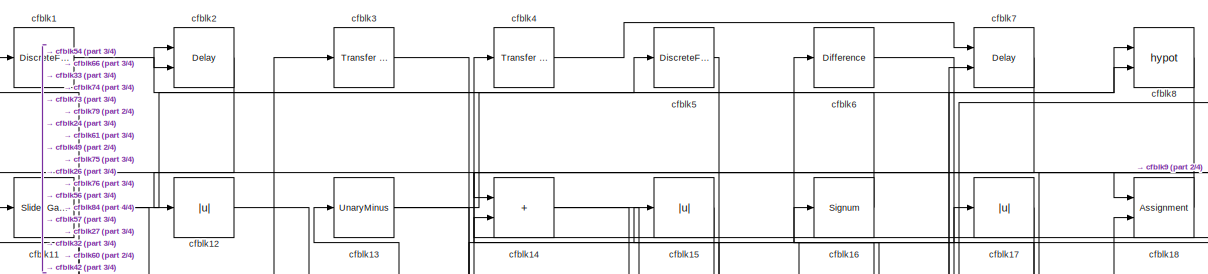
[diagram: root canvas - part 1/4, full width, top band]
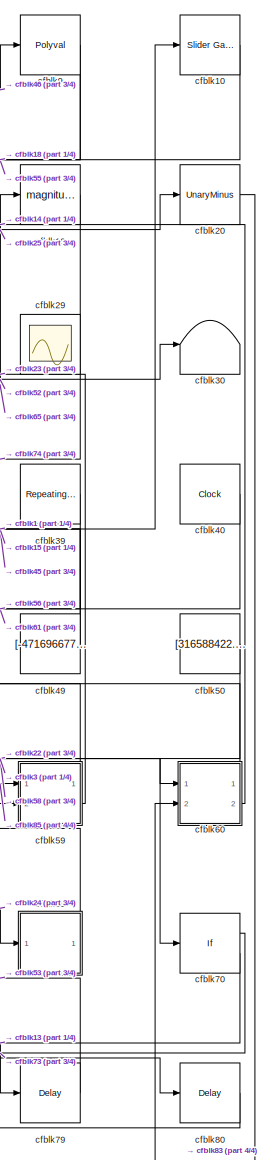
[diagram: root canvas - part 2/4, right side, full height]
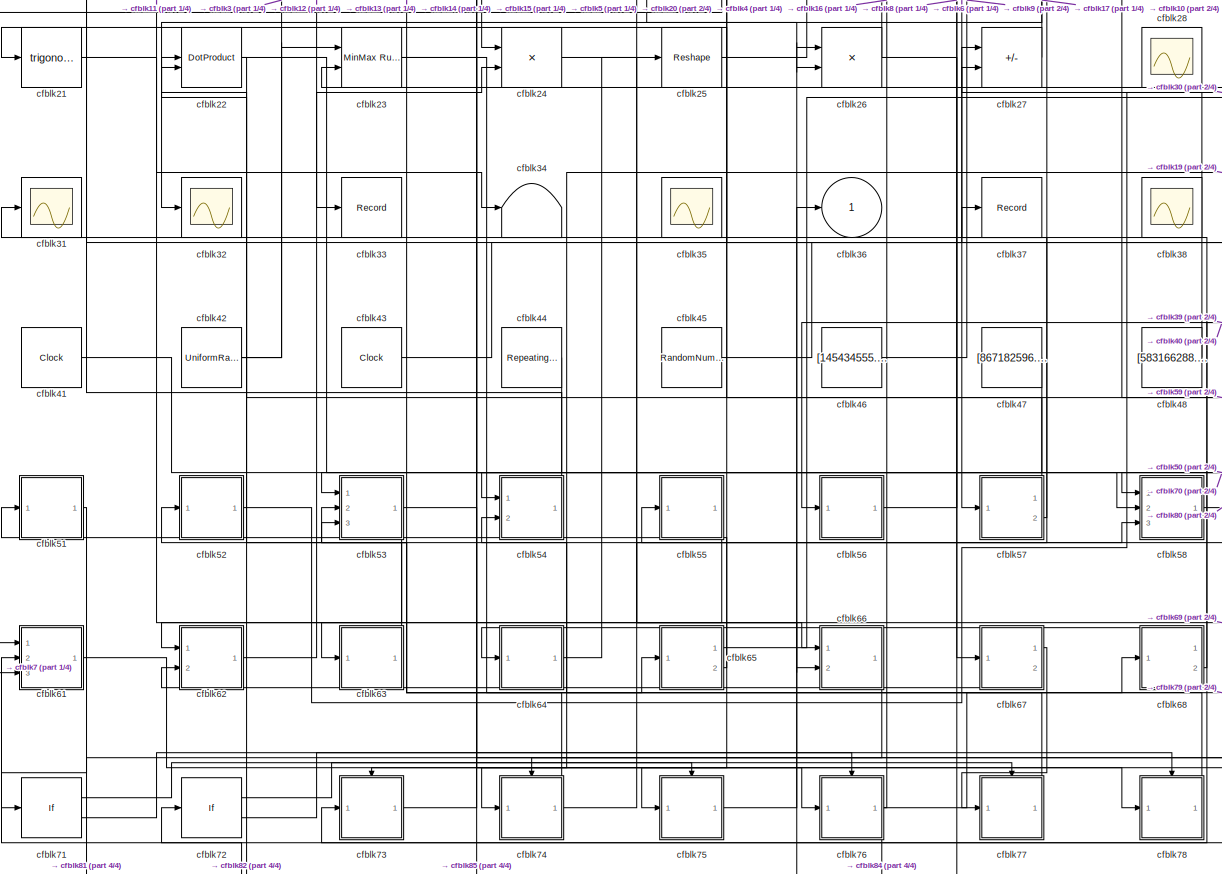
[diagram: root canvas - part 3/4, full width, middle band]
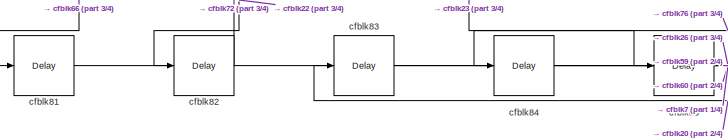
[diagram: root canvas - part 4/4, bottom left region]
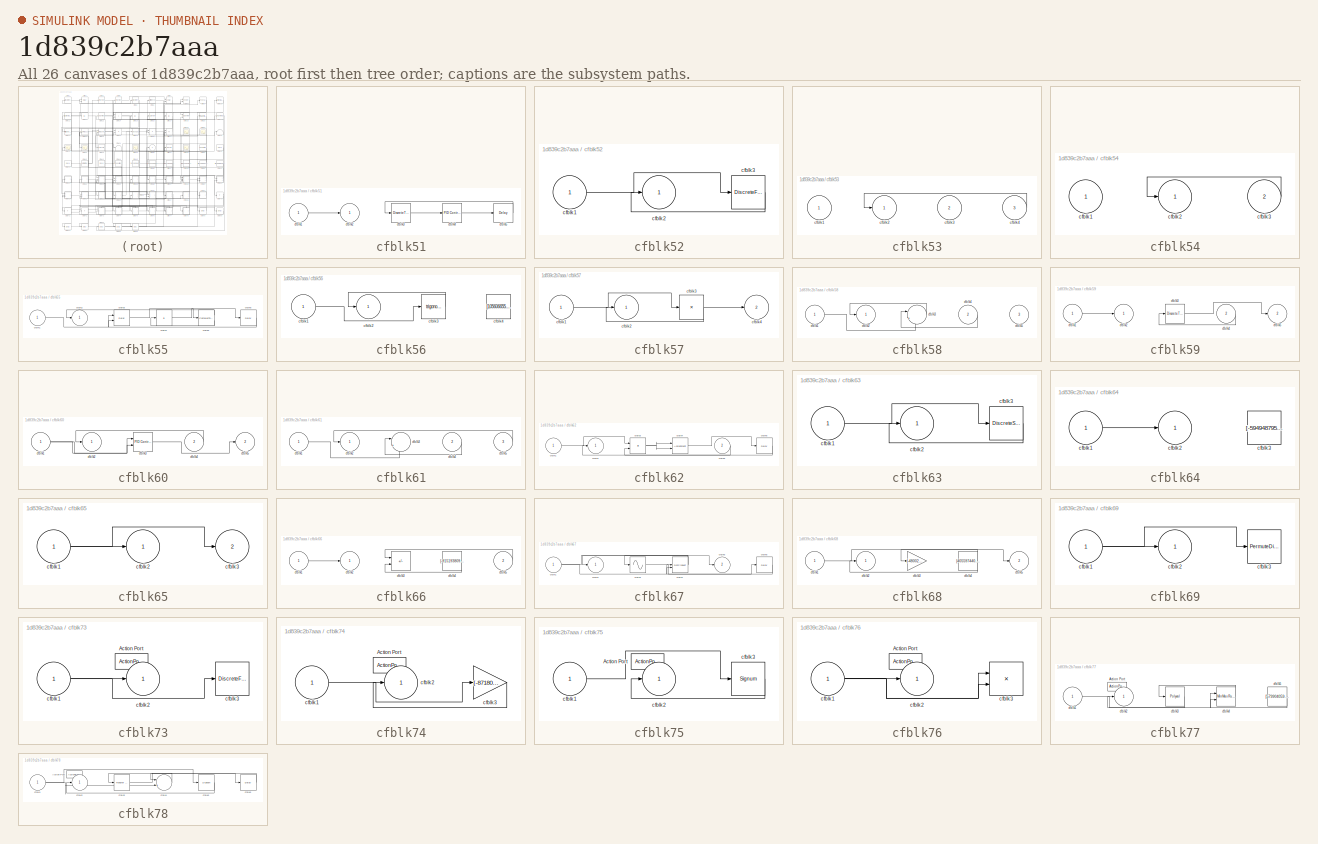
[diagram: thumbnail index - all 26 canvases of the model, root first then tree order]
MODEL slx_1d839c2b7aaa
KIND model
CONFIG AbsTol = auto
CONFIG EnableMultiTasking = off
CONFIG FixedStep = auto
CONFIG MaxStep = auto
CONFIG MinStep = auto
CONFIG RelTol = 1e-3
CONFIG SampleTimeConstraint = Unconstrained
CONFIG SolverName = VariableStepAuto
CONFIG StartTime = 0.0
CONFIG StopTime = 10.0
BLOCK [DiscreteFilter] cfblk1
  InputPortMap = u0
  Ports = [1, 1]
  SampleTime = 1
BLOCK [Reference] cfblk10  REF=simulink/Math
Operations/Slider
Gain
  Ports = [1, 1]
  SourceBlock = simulink/Math\nOperations/Slider\nGain
  SourceProductBaseCode = SL
  SourceType = Slider Gain
BLOCK [Reference] cfblk11  REF=simulink/Math
Operations/Slider
Gain
  Ports = [1, 1]
  SourceBlock = simulink/Math\nOperations/Slider\nGain
  SourceProductBaseCode = SL
  SourceType = Slider Gain
BLOCK [Abs] cfblk12
  SaturateOnIntegerOverflow = off
BLOCK [UnaryMinus] cfblk13
BLOCK [Sum] cfblk14
  IconShape = rectangular
  Ports = [2, 1]
BLOCK [Abs] cfblk15
  SaturateOnIntegerOverflow = off
BLOCK [Signum] cfblk16
BLOCK [Abs] cfblk17
  SaturateOnIntegerOverflow = off
BLOCK [Assignment] cfblk18
  DiagnosticForDimensions = Warning
  IndexOptions = Index vector (dialog)
  Indices = 1
  OutputSizes = 1
  Ports = [2, 1]
BLOCK [Math] cfblk19
  Operator = magnitude^2
  Ports = [1, 1]
BLOCK [Delay] cfblk2
  DelayLengthSource = Input port
  InputPortMap = u0,p1
  Ports = [2, 1]
  SampleTime = 1
BLOCK [UnaryMinus] cfblk20
BLOCK [Trigonometry] cfblk21
  Ports = [1, 1]
BLOCK [DotProduct] cfblk22
  OutDataTypeStr = Inherit: Inherit via internal rule
BLOCK [Reference] cfblk23  REF=simulink/Math
Operations/MinMax
Running
Resettable
  Ports = [2, 1]
  SourceBlock = simulink/Math\nOperations/MinMax\nRunning\nResettable
  SourceProductBaseCode = SL
  SourceType = MinMax Running Resettable
BLOCK [Product] cfblk24
  Inputs = **
  Ports = [2, 1]
BLOCK [Reshape] cfblk25
  Ports = [1, 1]
BLOCK [Product] cfblk26
  Ports = [2, 1]
BLOCK [Sum] cfblk27
  IconShape = rectangular
  Inputs = +-
  Ports = [2, 1]
BLOCK [Scope] cfblk28
  Floating = on
  NumInputPorts = 1
  Ports = []
BLOCK [Scope] cfblk29
  Floating = on
  NumInputPorts = 1
  Ports = []
BLOCK [Reference] cfblk3  REF=simulink/Discrete/Transfer Fcn
First Order
  Ports = [1, 1]
  SourceBlock = simulink/Discrete/Transfer Fcn\nFirst Order
  SourceProductBaseCode = SL
  SourceType = First Order Transfer Fcn
BLOCK [Terminator] cfblk30
BLOCK [Scope] cfblk31
  Floating = off
  NumInputPorts = 1
  Ports = [1]
BLOCK [Scope] cfblk32
  Floating = off
  NumInputPorts = 1
  Ports = [1]
BLOCK [Record] cfblk33
  FileSettingsInternal = {"entries":[{"content":{"excelSettings":{"content":{},"type":"Streamout.ExcelSettings"}},"type":"Streamout.FileSettingStorage","uuid":"975966c2-4cda-4386-ad9c-cd4fc01fc40b"}],"packageUris":["http://schema.mathworks.com/mf0/streamout_blocks/R2020a"],"version":"1.0"}
  Ports = [1]
  SignalsInternal = {"entries":[{"content":{"signals":[{"content":{"blockPath":["sampleModel198/cfblk33"],"channel":[],"dimensions":[1],"domain":"sampleModel198/cfblk33","lineColor":"#4dbeee","plots":[1],"port":1,"sid":[""],"signalID":7610,"signalName":"cfblk12"},"type":"RecordBlkView.Signal","uuid":"3859e22a-253c-4707-ae62-4cf8810e8843"}]},"type":"RecordBlkView.InputSignals","uuid":"5a32dd6c-d0b2-4da2-9e0c-b9f135f22...<+97ch>
  VisualizationBindings = {"sparklinesplugin":{"info":[{"bindingParametersList":[],"subplotID":1}]}}
BLOCK [Terminator] cfblk34
BLOCK [Scope] cfblk35
  Floating = on
  NumInputPorts = 1
  Ports = []
BLOCK [Outport] cfblk36
BLOCK [Record] cfblk37
  FileSettingsInternal = {"entries":[{"content":{"excelSettings":{"content":{},"type":"Streamout.ExcelSettings"}},"type":"Streamout.FileSettingStorage","uuid":"afa21ecd-6699-4298-ac8a-1c9c32750c71"}],"packageUris":["http://schema.mathworks.com/mf0/streamout_blocks/R2020a"],"version":"1.0"}
  Ports = [1]
  SignalsInternal = {"entries":[{"content":{"signals":[{"content":{"blockPath":["sampleModel198/cfblk37"],"channel":[],"dimensions":[1],"domain":"sampleModel198/cfblk37","lineColor":"#a2142f","plots":[1],"port":1,"sid":[""],"signalID":7614,"signalName":"cfblk68:2"},"type":"RecordBlkView.Signal","uuid":"5cf420d3-3cc3-4fc9-a74c-599438989c23"}]},"type":"RecordBlkView.InputSignals","uuid":"7c9f76b5-0723-413a-a1a3-f1f7361...<+99ch>
  VisualizationBindings = {"sparklinesplugin":{"info":[{"bindingParametersList":[],"subplotID":1}]}}
BLOCK [Scope] cfblk38
  Floating = on
  NumInputPorts = 1
  Ports = []
BLOCK [Reference] cfblk39  REF=simulink/Sources/Repeating
Sequence
Interpolated
  Ports = [0, 1]
  SourceBlock = simulink/Sources/Repeating\nSequence\nInterpolated
  SourceProductBaseCode = SL
  SourceType = Repeating Sequence Interpolated
BLOCK [Reference] cfblk4  REF=simulink/Discrete/Transfer Fcn
Lead or Lag
  Ports = [1, 1]
  SourceBlock = simulink/Discrete/Transfer Fcn\nLead or Lag
  SourceProductBaseCode = SL
  SourceType = Lead or Lag Compensator
BLOCK [Clock] cfblk40
BLOCK [Clock] cfblk41
BLOCK [UniformRandomNumber] cfblk42
  Maximum = [9464081794.756077]
  Minimum = [-4764833722.470846]
  SampleTime = 0.1
  Seed = [23676897.000000]
BLOCK [Clock] cfblk43
BLOCK [Reference] cfblk44  REF=simulink/Sources/Repeating
Sequence
Interpolated
  Ports = [0, 1]
  SourceBlock = simulink/Sources/Repeating\nSequence\nInterpolated
  SourceProductBaseCode = SL
  SourceType = Repeating Sequence Interpolated
BLOCK [RandomNumber] cfblk45
  Mean = [-4045.318377]
  SampleTime = 0.1
  Seed = [282551397.000000]
  Variance = [3174.779034]
BLOCK [Constant] cfblk46
  SampleTime = 1
  Value = [145434555.121113]
BLOCK [Constant] cfblk47
  SampleTime = 1
  Value = [867182596.567799]
BLOCK [Constant] cfblk48
  SampleTime = 1
  Value = [583166288.141999]
BLOCK [Constant] cfblk49
  SampleTime = 1
  Value = [-471696677.962884]
BLOCK [DiscreteFir] cfblk5
  InputPortMap = u0
  OutputPortMap = o0
  Ports = [1, 1]
  SampleTime = 1
BLOCK [Constant] cfblk50
  SampleTime = 1
  Value = [316588422.628850]
BLOCK [SubSystem] cfblk51
  Ports = [1, 1]
  RequestExecContextInheritance = off
BLOCK [Inport] cfblk51/cfblk1
BLOCK [Outport] cfblk51/cfblk2
BLOCK [DiscreteTransferFcn] cfblk51/cfblk3
  InputPortMap = u0
  Ports = [1, 1]
  SampleTime = 1
BLOCK [Reference] cfblk51/cfblk4  REF=slpidlib/PID Controller
  Ports = [1, 1]
  SourceBlock = slpidlib/PID Controller
  SourceProductBaseCode = SL
  SourceType = PID 1dof
BLOCK [Delay] cfblk51/cfblk5
  InputPortMap = u0
  Ports = [1, 1]
  SampleTime = 1
BLOCK [SubSystem] cfblk52
  Ports = [1, 1]
  RequestExecContextInheritance = off
BLOCK [Inport] cfblk52/cfblk1
BLOCK [Outport] cfblk52/cfblk2
BLOCK [DiscreteFir] cfblk52/cfblk3
  InputPortMap = u0
  OutputPortMap = o0
  Ports = [1, 1]
  SampleTime = 1
BLOCK [SubSystem] cfblk53
  Ports = [3, 1]
  RequestExecContextInheritance = off
BLOCK [Inport] cfblk53/cfblk1
BLOCK [Outport] cfblk53/cfblk2
BLOCK [Inport] cfblk53/cfblk3
  Port = 2
BLOCK [Inport] cfblk53/cfblk4
  Port = 3
BLOCK [SubSystem] cfblk54
  Ports = [2, 1]
  RequestExecContextInheritance = off
BLOCK [Inport] cfblk54/cfblk1
BLOCK [Outport] cfblk54/cfblk2
BLOCK [Inport] cfblk54/cfblk3
  Port = 2
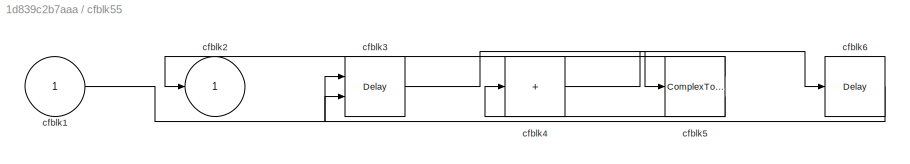
BLOCK [SubSystem] cfblk55
  Ports = [1, 1]
  RequestExecContextInheritance = off
BLOCK [Inport] cfblk55/cfblk1
BLOCK [Outport] cfblk55/cfblk2
BLOCK [Delay] cfblk55/cfblk3
  DelayLengthSource = Input port
  InputPortMap = u0,p1
  Ports = [2, 1]
  SampleTime = 1
BLOCK [Sum] cfblk55/cfblk4
  IconShape = rectangular
  Inputs = +
  Ports = [1, 1]
BLOCK [ComplexToRealImag] cfblk55/cfblk5
  Ports = [1, 2]
BLOCK [Delay] cfblk55/cfblk6
  InputPortMap = u0
  Ports = [1, 1]
  SampleTime = 1
BLOCK [SubSystem] cfblk56
  Ports = [1, 1]
  RequestExecContextInheritance = off
BLOCK [Inport] cfblk56/cfblk1
BLOCK [Outport] cfblk56/cfblk2
BLOCK [Trigonometry] cfblk56/cfblk3
  Ports = [1, 1]
BLOCK [Constant] cfblk56/cfblk4
  SampleTime = 1
  Value = [105606655.461587]
BLOCK [SubSystem] cfblk57
  Ports = [1, 2]
  RequestExecContextInheritance = off
BLOCK [Inport] cfblk57/cfblk1
BLOCK [Outport] cfblk57/cfblk2
BLOCK [Product] cfblk57/cfblk3
  Inputs = *
  Ports = [1, 1]
BLOCK [Outport] cfblk57/cfblk4
  Port = 2
BLOCK [SubSystem] cfblk58
  Ports = [3, 1]
  RequestExecContextInheritance = off
BLOCK [Inport] cfblk58/cfblk1
BLOCK [Outport] cfblk58/cfblk2
BLOCK [Sum] cfblk58/cfblk3
  Inputs = |++
  Ports = [2, 1]
BLOCK [Inport] cfblk58/cfblk4
  Port = 2
BLOCK [Inport] cfblk58/cfblk5
  Port = 3
BLOCK [SubSystem] cfblk59
  Ports = [2, 2]
  RequestExecContextInheritance = off
BLOCK [Inport] cfblk59/cfblk1
BLOCK [Outport] cfblk59/cfblk2
BLOCK [DiscreteTransferFcn] cfblk59/cfblk3
  InputPortMap = u0
  Ports = [1, 1]
  SampleTime = 1
BLOCK [Inport] cfblk59/cfblk4
  Port = 2
BLOCK [Outport] cfblk59/cfblk5
  Port = 2
BLOCK [Reference] cfblk6  REF=simulink/Discrete/Difference
  Ports = [1, 1]
  SourceBlock = simulink/Discrete/Difference
  SourceProductBaseCode = SL
  SourceType = Difference
BLOCK [SubSystem] cfblk60
  Ports = [2, 2]
  RequestExecContextInheritance = off
BLOCK [Inport] cfblk60/cfblk1
BLOCK [Outport] cfblk60/cfblk2
BLOCK [Reference] cfblk60/cfblk3  REF=slpidlib/PID Controller (2DOF)
  Ports = [2, 1]
  SourceBlock = slpidlib/PID Controller (2DOF)
  SourceProductBaseCode = SL
  SourceType = PID 2dof
BLOCK [Inport] cfblk60/cfblk4
  Port = 2
BLOCK [Outport] cfblk60/cfblk5
  Port = 2
BLOCK [SubSystem] cfblk61
  Ports = [3, 1]
  RequestExecContextInheritance = off
BLOCK [Inport] cfblk61/cfblk1
BLOCK [Outport] cfblk61/cfblk2
BLOCK [Sum] cfblk61/cfblk3
  Inputs = |++
  Ports = [2, 1]
BLOCK [Inport] cfblk61/cfblk4
  Port = 2
BLOCK [Inport] cfblk61/cfblk5
  Port = 3
BLOCK [SubSystem] cfblk62
  Ports = [2, 1]
  RequestExecContextInheritance = off
BLOCK [Inport] cfblk62/cfblk1
BLOCK [Outport] cfblk62/cfblk2
BLOCK [Product] cfblk62/cfblk3
  Ports = [2, 1]
BLOCK [Assignment] cfblk62/cfblk4
  DiagnosticForDimensions = Warning
  IndexOptions = Index vector (dialog)
  Indices = 1
  OutputSizes = 1
  Ports = [2, 1]
BLOCK [Inport] cfblk62/cfblk5
  Port = 2
BLOCK [Delay] cfblk62/cfblk6
  InputPortMap = u0
  Ports = [1, 1]
  SampleTime = 1
BLOCK [SubSystem] cfblk63
  Ports = [1, 1]
  RequestExecContextInheritance = off
BLOCK [Inport] cfblk63/cfblk1
BLOCK [Outport] cfblk63/cfblk2
BLOCK [DiscreteStateSpace] cfblk63/cfblk3
BLOCK [SubSystem] cfblk64
  Ports = [1, 1]
  RequestExecContextInheritance = off
BLOCK [Inport] cfblk64/cfblk1
BLOCK [Outport] cfblk64/cfblk2
BLOCK [Constant] cfblk64/cfblk3
  SampleTime = 1
  Value = [-594948795.505893]
BLOCK [SubSystem] cfblk65
  Ports = [1, 2]
  RequestExecContextInheritance = off
BLOCK [Inport] cfblk65/cfblk1
BLOCK [Outport] cfblk65/cfblk2
BLOCK [Outport] cfblk65/cfblk3
  Port = 2
BLOCK [SubSystem] cfblk66
  Ports = [2, 1]
  RequestExecContextInheritance = off
BLOCK [Inport] cfblk66/cfblk1
BLOCK [Outport] cfblk66/cfblk2
BLOCK [Sum] cfblk66/cfblk3
  IconShape = rectangular
  Inputs = +-
  Ports = [2, 1]
BLOCK [Constant] cfblk66/cfblk4
  SampleTime = 1
  Value = [-915193809.359701]
BLOCK [Inport] cfblk66/cfblk5
  Port = 2
BLOCK [SubSystem] cfblk67
  Ports = [1, 2]
  RequestExecContextInheritance = off
BLOCK [Inport] cfblk67/cfblk1
BLOCK [Outport] cfblk67/cfblk2
BLOCK [Sin] cfblk67/cfblk3
  Ports = [1, 1]
  SampleTime = 0
  TimeSource = Use external signal
BLOCK [DotProduct] cfblk67/cfblk4
  OutDataTypeStr = Inherit: Inherit via internal rule
BLOCK [Outport] cfblk67/cfblk5
  Port = 2
BLOCK [Delay] cfblk67/cfblk6
  InputPortMap = u0
  Ports = [1, 1]
  SampleTime = 1
BLOCK [SubSystem] cfblk68
  Ports = [1, 2]
  RequestExecContextInheritance = off
BLOCK [Inport] cfblk68/cfblk1
BLOCK [Outport] cfblk68/cfblk2
BLOCK [Gain] cfblk68/cfblk3
  Gain = [-480022562.919816]
BLOCK [Constant] cfblk68/cfblk4
  SampleTime = 1
  Value = [405597440.206954]
BLOCK [Outport] cfblk68/cfblk5
  Port = 2
BLOCK [SubSystem] cfblk69
  Ports = [1, 1]
  RequestExecContextInheritance = off
BLOCK [Inport] cfblk69/cfblk1
BLOCK [Outport] cfblk69/cfblk2
BLOCK [PermuteDimensions] cfblk69/cfblk3
BLOCK [Delay] cfblk7
  DelayLengthSource = Input port
  InputPortMap = u0,p1
  Ports = [2, 1]
  SampleTime = 1
BLOCK [If] cfblk70
  IfExpression = u1 >= 0
  Ports = [1, 2]
  SampleTime = 1
BLOCK [If] cfblk71
  IfExpression = u1 >= 0
  Ports = [1, 2]
  SampleTime = 1
BLOCK [If] cfblk72
  IfExpression = u1 >= 0
  Ports = [1, 2]
  SampleTime = 1
BLOCK [SubSystem] cfblk73
  Ports = [1, 1, 0, 0, 0, 0, 0, 1]
  RequestExecContextInheritance = off
  TreatAsAtomicUnit = on
BLOCK [ActionPort] cfblk73/Action Port
  ActionPortLabel = if(u1 >= 0)
BLOCK [Inport] cfblk73/cfblk1
BLOCK [Outport] cfblk73/cfblk2
BLOCK [DiscreteFir] cfblk73/cfblk3
  InputPortMap = u0
  OutputPortMap = o0
  Ports = [1, 1]
BLOCK [SubSystem] cfblk74
  Ports = [1, 1, 0, 0, 0, 0, 0, 1]
  RequestExecContextInheritance = off
  TreatAsAtomicUnit = on
BLOCK [ActionPort] cfblk74/Action Port
  ActionPortLabel = else
BLOCK [Inport] cfblk74/cfblk1
BLOCK [Outport] cfblk74/cfblk2
BLOCK [Gain] cfblk74/cfblk3
  Gain = [-87180.760682]
BLOCK [SubSystem] cfblk75
  Ports = [1, 1, 0, 0, 0, 0, 0, 1]
  RequestExecContextInheritance = off
  TreatAsAtomicUnit = on
BLOCK [ActionPort] cfblk75/Action Port
  ActionPortLabel = if(u1 >= 0)
BLOCK [Inport] cfblk75/cfblk1
BLOCK [Outport] cfblk75/cfblk2
BLOCK [Signum] cfblk75/cfblk3
BLOCK [SubSystem] cfblk76
  Ports = [1, 1, 0, 0, 0, 0, 0, 1]
  RequestExecContextInheritance = off
  TreatAsAtomicUnit = on
BLOCK [ActionPort] cfblk76/Action Port
  ActionPortLabel = else
BLOCK [Inport] cfblk76/cfblk1
BLOCK [Outport] cfblk76/cfblk2
BLOCK [Product] cfblk76/cfblk3
  Inputs = **
  Ports = [2, 1]
BLOCK [SubSystem] cfblk77
  Ports = [1, 1, 0, 0, 0, 0, 0, 1]
  RequestExecContextInheritance = off
  TreatAsAtomicUnit = on
BLOCK [ActionPort] cfblk77/Action Port
  ActionPortLabel = if(u1 >= 0)
BLOCK [Inport] cfblk77/cfblk1
BLOCK [Outport] cfblk77/cfblk2
BLOCK [Polyval] cfblk77/cfblk3
  Coefs = [ +2.081618890e-019, -1.441693666e-014, +4.719686976e-010, -8.536869453e-006, +1.621573104e-001, -8.087801117e+001 ]
BLOCK [Reference] cfblk77/cfblk4  REF=simulink/Math
Operations/MinMax
Running
Resettable
  Ports = [2, 1]
  SourceBlock = simulink/Math\nOperations/MinMax\nRunning\nResettable
  SourceProductBaseCode = SL
  SourceType = MinMax Running Resettable
BLOCK [Constant] cfblk77/cfblk5
  SampleTime = 1
  Value = [579904059.093683]
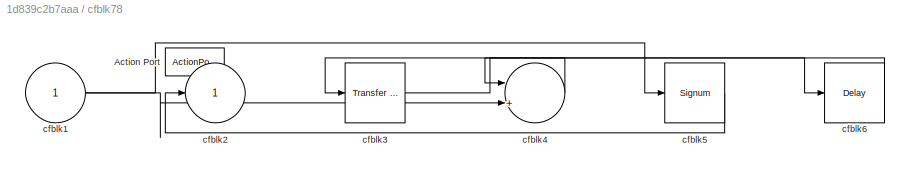
BLOCK [SubSystem] cfblk78
  Ports = [1, 1, 0, 0, 0, 0, 0, 1]
  RequestExecContextInheritance = off
  TreatAsAtomicUnit = on
BLOCK [ActionPort] cfblk78/Action Port
  ActionPortLabel = else
BLOCK [Inport] cfblk78/cfblk1
BLOCK [Outport] cfblk78/cfblk2
BLOCK [Reference] cfblk78/cfblk3  REF=simulink/Discrete/Transfer Fcn
Lead or Lag
  Ports = [1, 1]
  SourceBlock = simulink/Discrete/Transfer Fcn\nLead or Lag
  SourceProductBaseCode = SL
  SourceType = Lead or Lag Compensator
BLOCK [Sum] cfblk78/cfblk4
  Inputs = |++
  Ports = [2, 1]
BLOCK [Signum] cfblk78/cfblk5
BLOCK [Delay] cfblk78/cfblk6
  InputPortMap = u0
  Ports = [1, 1]
BLOCK [Delay] cfblk79
  InputPortMap = u0
  Ports = [1, 1]
  SampleTime = 1
BLOCK [Math] cfblk8
  Operator = hypot
  Ports = [2, 1]
BLOCK [Delay] cfblk80
  InputPortMap = u0
  Ports = [1, 1]
  SampleTime = 1
BLOCK [Delay] cfblk81
  InputPortMap = u0
  Ports = [1, 1]
  SampleTime = 1
BLOCK [Delay] cfblk82
  InputPortMap = u0
  Ports = [1, 1]
  SampleTime = 1
BLOCK [Delay] cfblk83
  InputPortMap = u0
  Ports = [1, 1]
  SampleTime = 1
BLOCK [Delay] cfblk84
  InputPortMap = u0
  Ports = [1, 1]
  SampleTime = 1
BLOCK [Delay] cfblk85
  InputPortMap = u0
  Ports = [1, 1]
  SampleTime = 1
BLOCK [Polyval] cfblk9
  Coefs = [ +2.081618890e-019, -1.441693666e-014, +4.719686976e-010, -8.536869453e-006, +1.621573104e-001, -8.087801117e+001 ]
LINE cfblk10:1 -> cfblk55:1
NET cfblk11:1 -> cfblk66:1, cfblk8:1
LINE cfblk12:1 -> cfblk33:1
NET cfblk13:1 -> cfblk5:1, cfblk79:1
NET cfblk14:1 -> cfblk26:2, cfblk66:2
LINE cfblk15:1 -> cfblk61:1
LINE cfblk16:1 -> cfblk2:1
LINE cfblk17:1 -> cfblk32:1
LINE cfblk18:1 -> cfblk14:1
LINE cfblk19:1 -> cfblk74:1
LINE cfblk1:1 -> cfblk2:2
LINE cfblk20:1 -> cfblk83:1
LINE cfblk21:1 -> cfblk34:1
NET cfblk22:1 -> cfblk70:1, cfblk82:1
NET cfblk23:1 -> cfblk65:1, cfblk85:1
LINE cfblk24:1 -> cfblk69:1
LINE cfblk25:1 -> cfblk20:1
NET cfblk26:1 -> cfblk4:1, cfblk58:2
LINE cfblk27:1 -> cfblk6:1
LINE cfblk2:1 -> cfblk12:1
LINE cfblk39:1 -> cfblk56:1
LINE cfblk3:1 -> cfblk60:1
LINE cfblk40:1 -> cfblk61:2
LINE cfblk41:1 -> cfblk67:1
NET cfblk42:1 -> cfblk23:1, cfblk3:1
LINE cfblk43:1 -> cfblk27:1
LINE cfblk44:1 -> cfblk53:1
LINE cfblk45:1 -> cfblk10:1
LINE cfblk46:1 -> cfblk9:1
LINE cfblk47:1 -> cfblk54:1
LINE cfblk48:1 -> cfblk27:2
NET cfblk49:1 -> cfblk15:1, cfblk1:1
LINE cfblk4:1 -> cfblk7:1
LINE cfblk50:1 -> cfblk58:1
LINE cfblk51/cfblk1:1 -> cfblk51/cfblk2:1
LINE cfblk51/cfblk3:1 -> cfblk51/cfblk4:1
LINE cfblk51/cfblk4:1 -> cfblk51/cfblk5:1
LINE cfblk51/cfblk5:1 -> cfblk51/cfblk3:1
LINE cfblk51:1 -> cfblk71:1
LINE cfblk52/cfblk1:1 -> cfblk52/cfblk3:1
LINE cfblk52/cfblk3:1 -> cfblk52/cfblk2:1
LINE cfblk52:1 -> cfblk30:1
LINE cfblk53/cfblk4:1 -> cfblk53/cfblk2:1
NET cfblk53:1 -> cfblk63:1, cfblk76:1
LINE cfblk54/cfblk3:1 -> cfblk54/cfblk2:1
LINE cfblk54:1 -> cfblk11:1
LINE cfblk55/cfblk1:1 -> cfblk55/cfblk3:1
LINE cfblk55/cfblk3:1 -> cfblk55/cfblk5:1
LINE cfblk55/cfblk4:1 -> cfblk55/cfblk6:1
LINE cfblk55/cfblk5:1 -> cfblk55/cfblk2:1
LINE cfblk55/cfblk5:2 -> cfblk55/cfblk4:1
LINE cfblk55/cfblk6:1 -> cfblk55/cfblk3:2
LINE cfblk55:1 -> cfblk62:1
LINE cfblk56/cfblk1:1 -> cfblk56/cfblk3:1
LINE cfblk56/cfblk3:1 -> cfblk56/cfblk2:1
LINE cfblk56:1 -> cfblk8:2
LINE cfblk57/cfblk1:1 -> cfblk57/cfblk3:1
NET cfblk57/cfblk3:1 -> cfblk57/cfblk2:1, cfblk57/cfblk4:1
LINE cfblk57:1 -> cfblk21:1
LINE cfblk57:2 -> cfblk31:1
LINE cfblk58/cfblk1:1 -> cfblk58/cfblk3:2
LINE cfblk58/cfblk3:1 -> cfblk58/cfblk2:1
LINE cfblk58/cfblk4:1 -> cfblk58/cfblk3:1
LINE cfblk58:1 -> cfblk80:1
LINE cfblk59/cfblk1:1 -> cfblk59/cfblk2:1
LINE cfblk59/cfblk3:1 -> cfblk59/cfblk5:1
LINE cfblk59/cfblk4:1 -> cfblk59/cfblk3:1
LINE cfblk59:1 -> cfblk22:1
LINE cfblk59:2 -> cfblk23:2
LINE cfblk5:1 -> cfblk75:1
NET cfblk60/cfblk1:1 -> cfblk60/cfblk3:1, cfblk60/cfblk3:2
LINE cfblk60/cfblk3:1 -> cfblk60/cfblk5:1
LINE cfblk60/cfblk4:1 -> cfblk60/cfblk2:1
LINE cfblk60:1 -> cfblk18:2
LINE cfblk60:2 -> cfblk14:2
LINE cfblk61/cfblk1:1 -> cfblk61/cfblk3:2
LINE cfblk61/cfblk4:1 -> cfblk61/cfblk3:1
LINE cfblk61/cfblk5:1 -> cfblk61/cfblk2:1
LINE cfblk61:1 -> cfblk78:1
LINE cfblk62/cfblk1:1 -> cfblk62/cfblk3:1
NET cfblk62/cfblk3:1 -> cfblk62/cfblk4:1, cfblk62/cfblk4:2
LINE cfblk62/cfblk4:1 -> cfblk62/cfblk6:1
LINE cfblk62/cfblk5:1 -> cfblk62/cfblk2:1
LINE cfblk62/cfblk6:1 -> cfblk62/cfblk3:2
LINE cfblk62:1 -> cfblk24:2
LINE cfblk63/cfblk1:1 -> cfblk63/cfblk3:1
LINE cfblk63/cfblk3:1 -> cfblk63/cfblk2:1
LINE cfblk63:1 -> cfblk22:2
LINE cfblk64/cfblk1:1 -> cfblk64/cfblk2:1
LINE cfblk64:1 -> cfblk25:1
NET cfblk65/cfblk1:1 -> cfblk65/cfblk2:1, cfblk65/cfblk3:1
LINE cfblk65:1 -> cfblk19:1
LINE cfblk65:2 -> cfblk51:1
LINE cfblk66/cfblk1:1 -> cfblk66/cfblk2:1
LINE cfblk66/cfblk4:1 -> cfblk66/cfblk3:2
LINE cfblk66/cfblk5:1 -> cfblk66/cfblk3:1
LINE cfblk66:1 -> cfblk81:1
NET cfblk67/cfblk1:1 -> cfblk67/cfblk4:1, cfblk67/cfblk5:1
LINE cfblk67/cfblk3:1 -> cfblk67/cfblk6:1
NET cfblk67/cfblk4:1 -> cfblk67/cfblk2:1, cfblk67/cfblk3:1
LINE cfblk67/cfblk6:1 -> cfblk67/cfblk4:2
LINE cfblk67:1 -> cfblk77:1
LINE cfblk67:2 -> cfblk62:2
LINE cfblk68/cfblk1:1 -> cfblk68/cfblk5:1
NET cfblk68/cfblk4:1 -> cfblk68/cfblk2:1, cfblk68/cfblk3:1
LINE cfblk68:1 -> cfblk64:1
LINE cfblk68:2 -> cfblk37:1
NET cfblk69/cfblk1:1 -> cfblk69/cfblk2:1, cfblk69/cfblk3:1
LINE cfblk69:1 -> cfblk52:1
LINE cfblk6:1 -> cfblk57:1
LINE cfblk70:1 -> cfblk73:ifaction
LINE cfblk70:2 -> cfblk74:ifaction
LINE cfblk71:1 -> cfblk75:ifaction
LINE cfblk71:2 -> cfblk76:ifaction
LINE cfblk72:1 -> cfblk77:ifaction
LINE cfblk72:2 -> cfblk78:ifaction
NET cfblk73/cfblk1:1 -> cfblk73/cfblk2:1, cfblk73/cfblk3:1
LINE cfblk73:1 -> cfblk17:1
LINE cfblk74/cfblk1:1 -> cfblk74/cfblk3:1
LINE cfblk74/cfblk3:1 -> cfblk74/cfblk2:1
NET cfblk74:1 -> cfblk13:1, cfblk58:3
LINE cfblk75/cfblk1:1 -> cfblk75/cfblk3:1
LINE cfblk75/cfblk3:1 -> cfblk75/cfblk2:1
LINE cfblk75:1 -> cfblk36:1
NET cfblk76/cfblk1:1 -> cfblk76/cfblk2:1, cfblk76/cfblk3:1, cfblk76/cfblk3:2
NET cfblk76:1 -> cfblk16:1, cfblk68:1, cfblk84:1
LINE cfblk77/cfblk1:1 -> cfblk77/cfblk4:1
LINE cfblk77/cfblk3:1 -> cfblk77/cfblk2:1
LINE cfblk77/cfblk4:1 -> cfblk77/cfblk3:1
LINE cfblk77/cfblk5:1 -> cfblk77/cfblk4:2
LINE cfblk77:1 -> cfblk54:2
NET cfblk78/cfblk1:1 -> cfblk78/cfblk4:2, cfblk78/cfblk5:1
LINE cfblk78/cfblk3:1 -> cfblk78/cfblk6:1
LINE cfblk78/cfblk4:1 -> cfblk78/cfblk3:1
LINE cfblk78/cfblk5:1 -> cfblk78/cfblk2:1
LINE cfblk78/cfblk6:1 -> cfblk78/cfblk4:1
LINE cfblk78:1 -> cfblk53:2
LINE cfblk79:1 -> cfblk53:3
LINE cfblk7:1 -> cfblk61:3
LINE cfblk80:1 -> cfblk73:1
LINE cfblk81:1 -> cfblk26:1
LINE cfblk82:1 -> cfblk72:1
LINE cfblk83:1 -> cfblk60:2
LINE cfblk84:1 -> cfblk7:2
LINE cfblk85:1 -> cfblk59:1
LINE cfblk8:1 -> cfblk24:1
NET cfblk9:1 -> cfblk18:1, cfblk59:2
note: NET lines group one-source signal fan-out (src -> all destinations, sorted); 1:1 wires keep LINE
